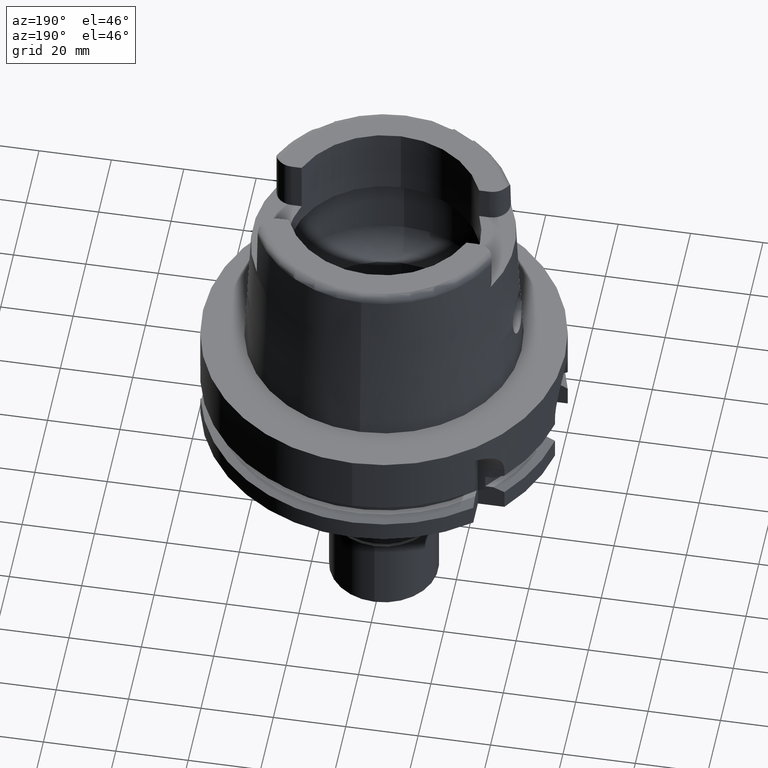
[diagram: clean part render]
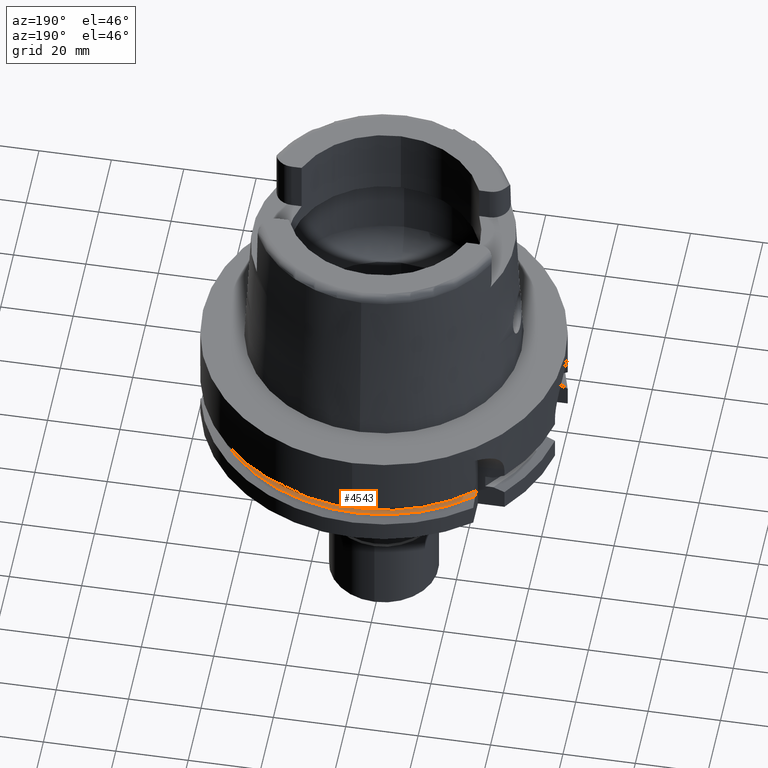
[diagram: same view with one face highlighted and labeled with its STEP entity id]
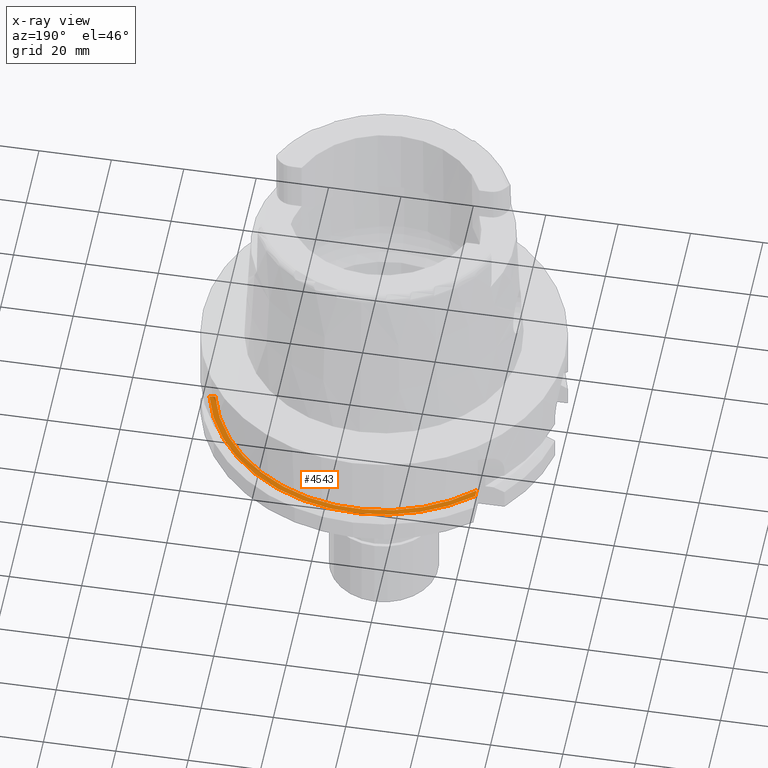
[diagram: x-ray of the same camera — body ghosted, the highlighted face saturated]
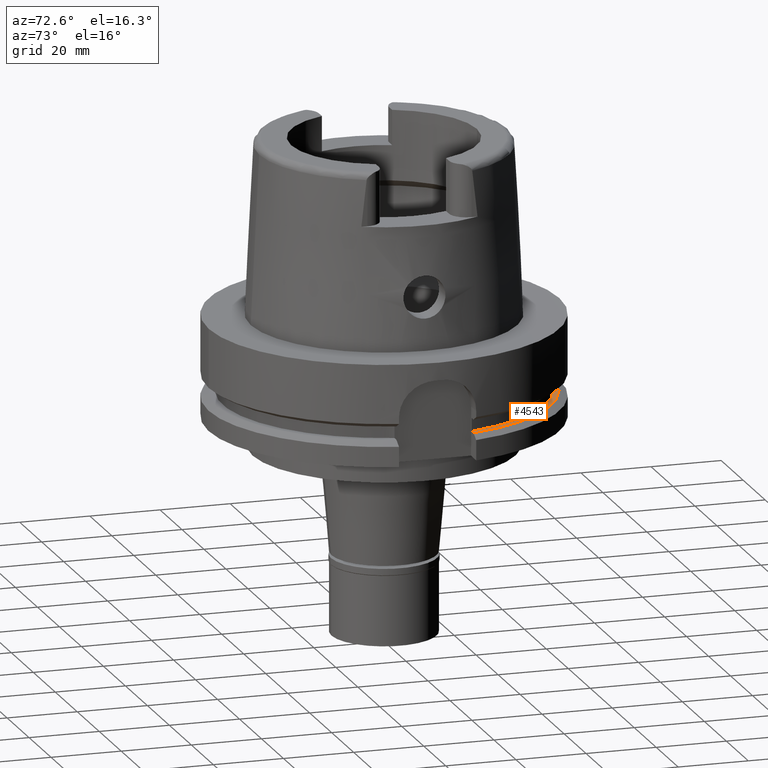
[diagram: same view with one face highlighted and labeled with its STEP entity id]
A machine part, auxiliary view. The second image highlights one B-rep face of the part: STEP entity #4543.
The next image is the same camera in x-ray: the body ghosted, the highlighted face saturated — about 1% of this face is hidden behind the body in this view.
A second angle (auxiliary view) of the same face is appended — the face is thin or edge-on in the first view.
In plain terms, the highlighted planar face has unit normal (0, 0, 1).
Its self-contained STEP definition (entity closure, byte-faithful):
#103 = EDGE_CURVE ( 'NONE', #4931, #4878, #4524, .T. ) ;
#363 = VECTOR ( 'NONE', #3156, 1000.000000000000000 ) ;
#637 = DIRECTION ( 'NONE',  ( 0.0000000000000000000, 0.0000000000000000000, 1.000000000000000000 ) ) ;
#695 = CARTESIAN_POINT ( 'NONE',  ( -31.50000000000000000, 33.52238058372000040, -21.87500000000000000 ) ) ;
#887 = AXIS2_PLACEMENT_3D ( 'NONE', #2825, #4619, #4525 ) ;
#974 = LINE ( 'NONE', #4860, #363 ) ;
#1181 = EDGE_CURVE ( 'NONE', #2511, #4878, #2690, .T. ) ;
#1234 = AXIS2_PLACEMENT_3D ( 'NONE', #2849, #2549, #4641 ) ;
#1671 = CARTESIAN_POINT ( 'NONE',  ( -31.50000097288999967, 35.71639618401999883, -21.87500000000000000 ) ) ;
#1832 = ORIENTED_EDGE ( 'NONE', *, *, #2469, .F. ) ;
#2349 = CARTESIAN_POINT ( 'NONE',  ( 46.33477721644000269, 11.00000000000000000, -21.87500000000000000 ) ) ;
#2469 = EDGE_CURVE ( 'NONE', #3093, #2511, #974, .T. ) ;
#2511 = VERTEX_POINT ( 'NONE', #1671 ) ;
#2549 = DIRECTION ( 'NONE',  ( 0.0000000000000000000, 0.0000000000000000000, 1.000000000000000000 ) ) ;
#2690 = CIRCLE ( 'NONE', #887, 47.62259526418999656 ) ;
#2767 = AXIS2_PLACEMENT_3D ( 'NONE', #5057, #637, #5408 ) ;
#2825 = CARTESIAN_POINT ( 'NONE',  ( 0.0000000000000000000, 0.0000000000000000000, -21.87500000000000000 ) ) ;
#2849 = CARTESIAN_POINT ( 'NONE',  ( 0.0000000000000000000, 0.0000000000000000000, -21.87500000000000000 ) ) ;
#3093 = VERTEX_POINT ( 'NONE', #695 ) ;
#3156 = DIRECTION ( 'NONE',  ( -4.434271693799003071E-07, 0.9999999999999016342, -9.553719992730006994E-14 ) ) ;
#3176 = FACE_OUTER_BOUND ( 'NONE', #4188, .T. ) ;
#3790 = CARTESIAN_POINT ( 'NONE',  ( 44.66542286825000474, 11.00000000000000000, -21.87500000000000000 ) ) ;
#4101 = ORIENTED_EDGE ( 'NONE', *, *, #1181, .F. ) ;
#4188 = EDGE_LOOP ( 'NONE', ( #1832, #5558, #5412, #4101 ) ) ;
#4198 = DIRECTION ( 'NONE',  ( 1.000000000000000000, -2.660245323785999992E-13, -1.213071867646000163E-13 ) ) ;
#4229 = CARTESIAN_POINT ( 'NONE',  ( 44.66542286825000474, 11.00000000000000000, -21.87500000000000000 ) ) ;
#4524 = LINE ( 'NONE', #4229, #5606 ) ;
#4525 = DIRECTION ( 'NONE',  ( 0.0000000000000000000, 1.000000000000000000, 0.0000000000000000000 ) ) ;
#4543 = ADVANCED_FACE ( 'NONE', ( #3176 ), #4911, .T. ) ;
#4619 = DIRECTION ( 'NONE',  ( 0.0000000000000000000, 0.0000000000000000000, -1.000000000000000000 ) ) ;
#4641 = DIRECTION ( 'NONE',  ( 0.9709874536577099979, 0.2391304347826024856, 0.0000000000000000000 ) ) ;
#4682 = CIRCLE ( 'NONE', #1234, 46.00000000000000000 ) ;
#4860 = CARTESIAN_POINT ( 'NONE',  ( -31.50000000000000000, 33.52238058372000040, -21.87500000000000000 ) ) ;
#4878 = VERTEX_POINT ( 'NONE', #2349 ) ;
#4911 = PLANE ( 'NONE',  #2767 ) ;
#4931 = VERTEX_POINT ( 'NONE', #3790 ) ;
#5057 = CARTESIAN_POINT ( 'NONE',  ( 0.0000000000000000000, 0.0000000000000000000, -21.87500000000000000 ) ) ;
#5408 = DIRECTION ( 'NONE',  ( 1.000000000000000000, 0.0000000000000000000, 0.0000000000000000000 ) ) ;
#5412 = ORIENTED_EDGE ( 'NONE', *, *, #103, .T. ) ;
#5558 = ORIENTED_EDGE ( 'NONE', *, *, #5570, .F. ) ;
#5570 = EDGE_CURVE ( 'NONE', #4931, #3093, #4682, .T. ) ;
#5606 = VECTOR ( 'NONE', #4198, 1000.000000000000000 ) ;